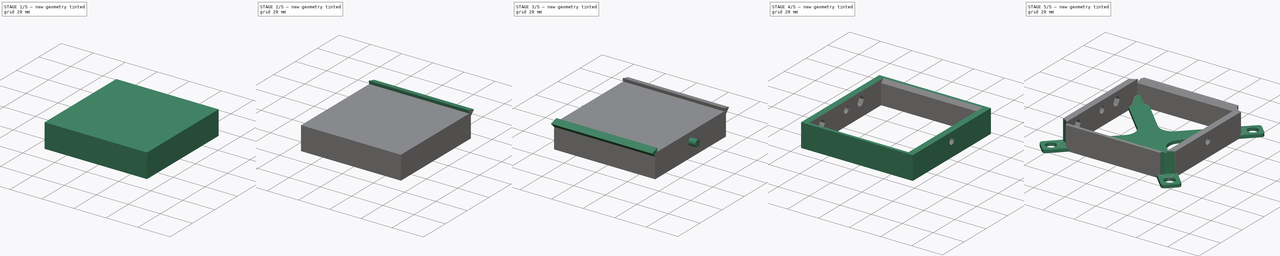
[diagram: build sequence overview — one tinted view per stage of 5, left to right]
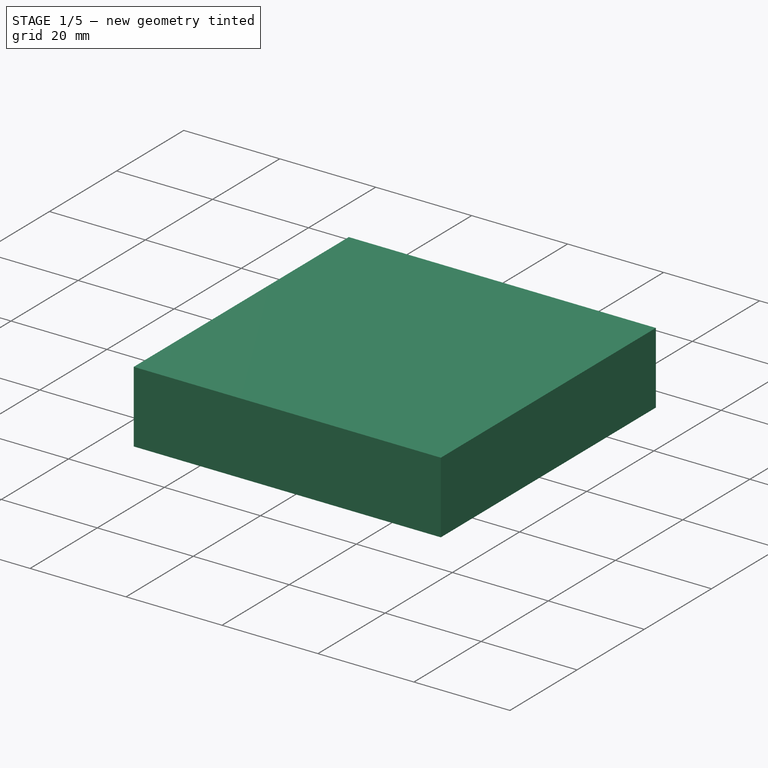
[diagram: stage 1 of 5 — iso view after this stage's code; geometry added in this stage tinted green]
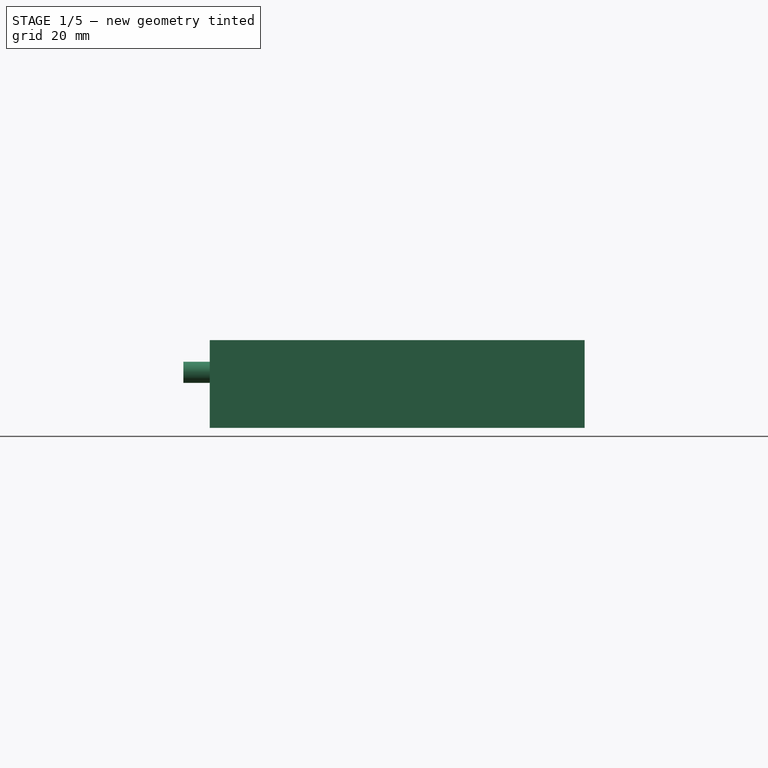
[diagram: stage 1 of 5 — front view after this stage's code; geometry added in this stage tinted green]
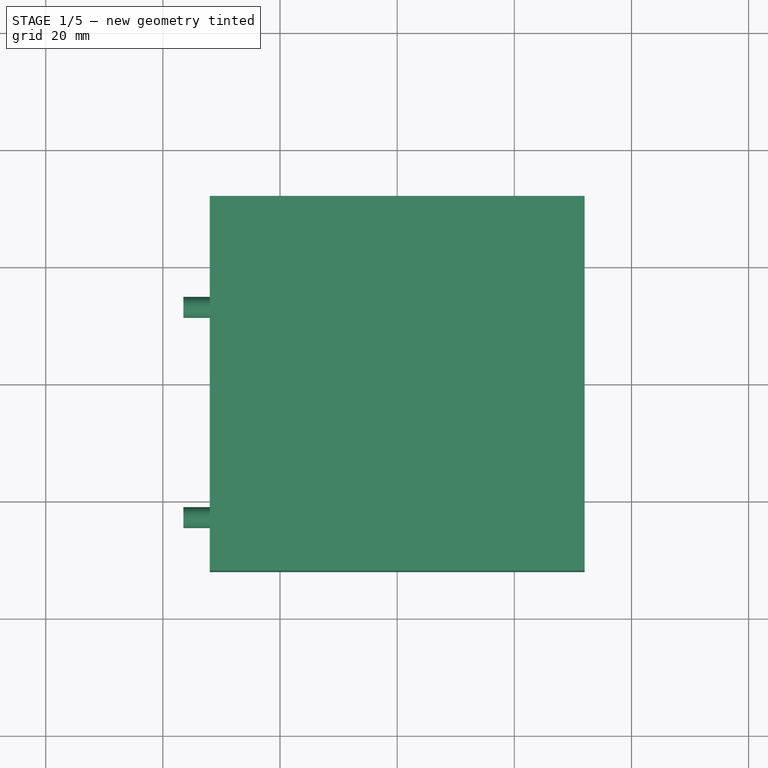
[diagram: stage 1 of 5 — top view after this stage's code; geometry added in this stage tinted green]
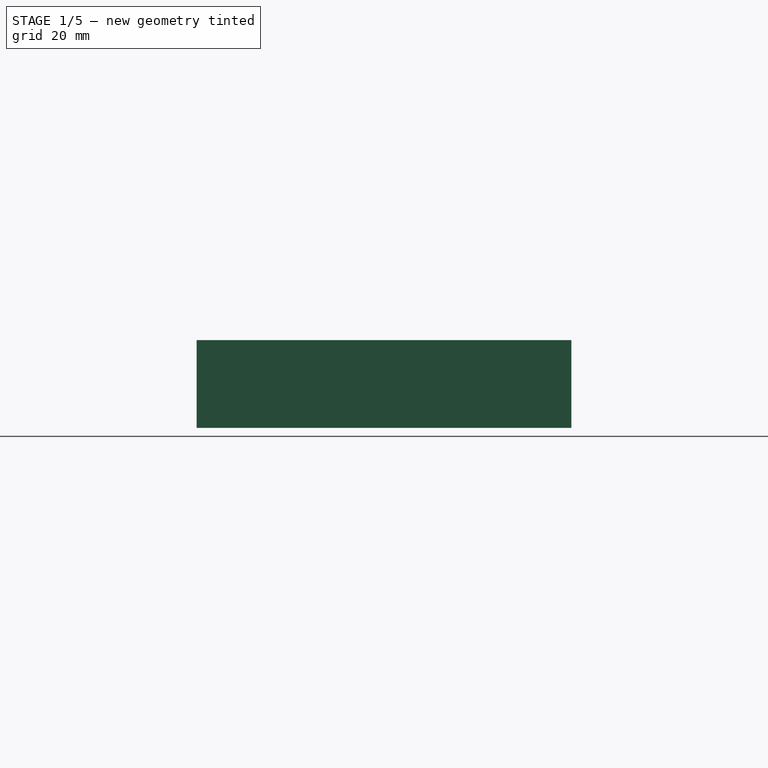
[diagram: stage 1 of 5 — right view after this stage's code; geometry added in this stage tinted green]
FCSTD DOCUMENT  (FreeCAD 0.19R23634 (Git))
Label: Stage-Base
License: All rights reserved
LicenseURL: http://en.wikipedia.org/wiki/All_rights_reserved
objects: Part::Prism×4, Part::Cylinder×3, Sketcher::SketchObject×3, Part::Box×2, PartDesign::CoordinateSystem×2, Part::MultiFuse×1, Part::Cut×1, PartDesign::FeatureBase×1, PartDesign::Pad×1, PartDesign::Pocket×1, PartDesign::Revolution×1, PartDesign::Body×1, App::Part×1
note: 24 computed .brp shape members not serialized (recipe doc carries the construction recipe); baked Part::Feature solids carry a one-line shape summary decoded from their .brp

FEATURE [Part::Cylinder] cylinder002
  Angle = 360
  AttacherType = Attacher::AttachEngine3D
  Height = 6
  Placement = pos=(-36.5,-22.85,-7.5) rot=(0.57735,0.57735,0.57735;2.0944rad)
  Radius = 1.8
FEATURE [Part::Box] cube001
  AttacherType = Attacher::AttachEngine3D
  Height = 15
  Length = 64
  Placement = pos=(-32,-32,-17) rot=(0,0,1;0rad)
  Width = 64
FEATURE [Part::Cylinder] cylinder001
  Angle = 360
  AttacherType = Attacher::AttachEngine3D
  Height = 6
  Placement = pos=(-36.5,13.05,-7.5) rot=(0.57735,0.57735,0.57735;2.0944rad)
  Radius = 1.8
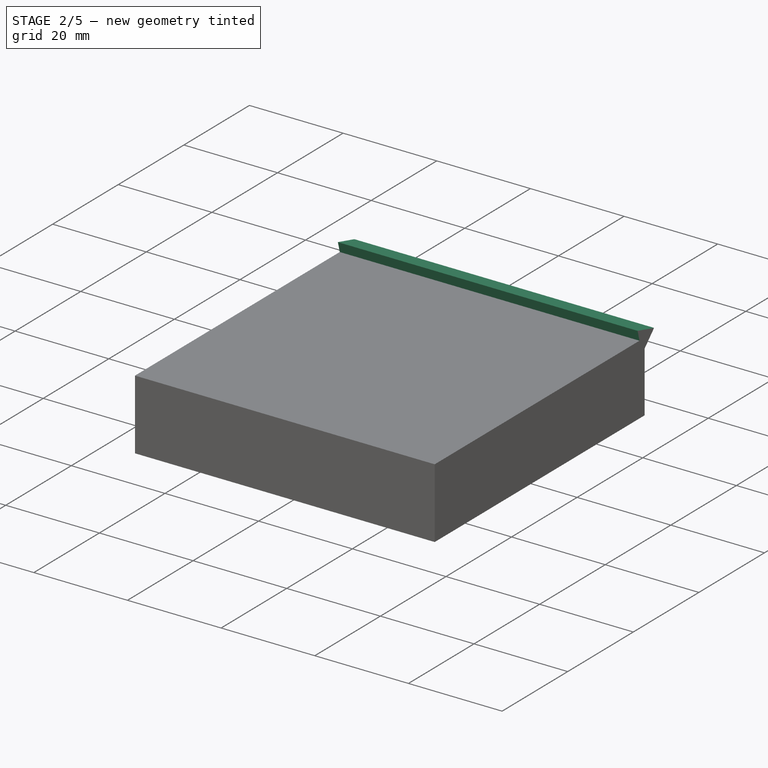
[diagram: stage 2 of 5 — iso view after this stage's code; geometry added in this stage tinted green]
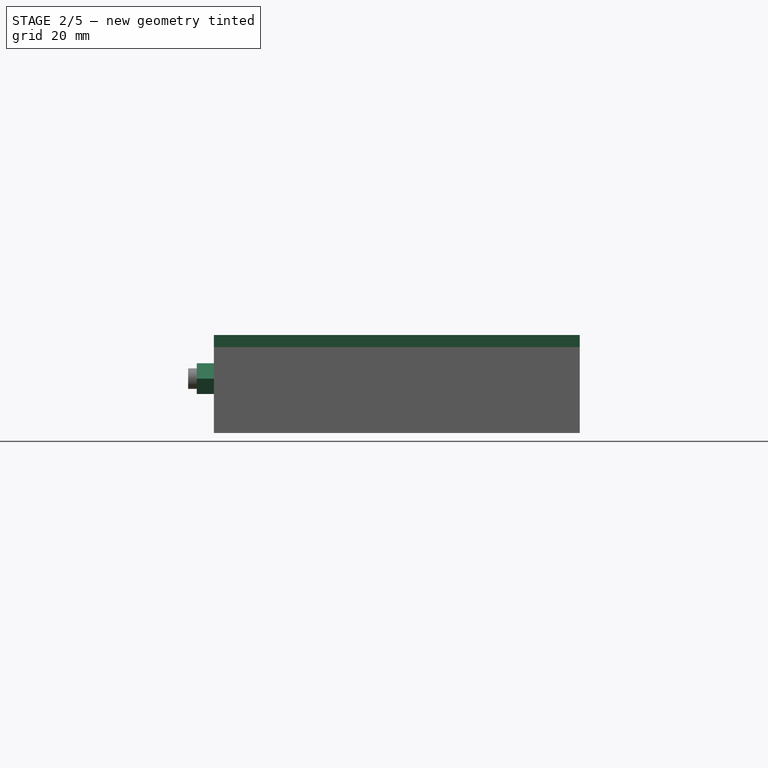
[diagram: stage 2 of 5 — front view after this stage's code; geometry added in this stage tinted green]
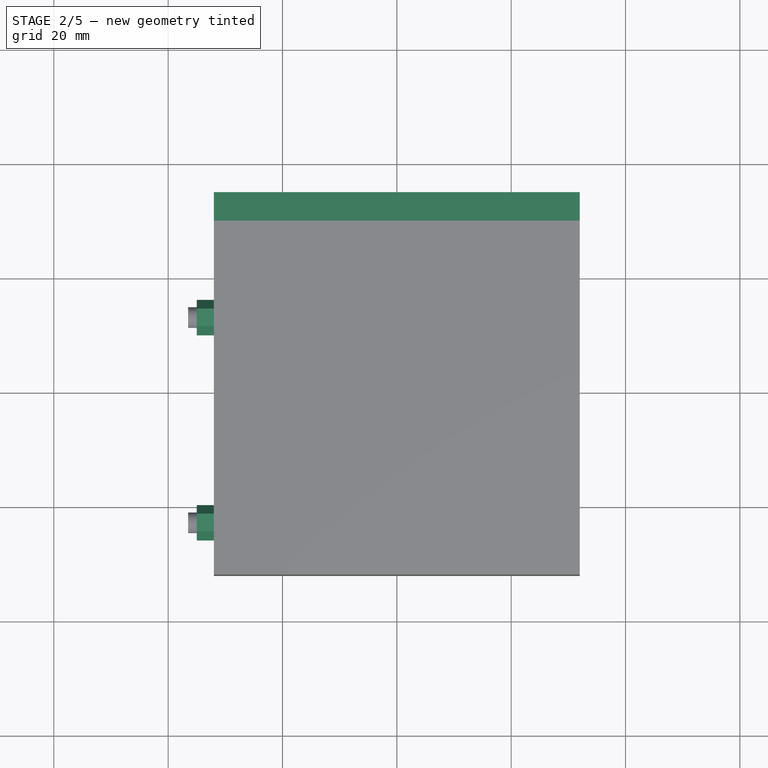
[diagram: stage 2 of 5 — top view after this stage's code; geometry added in this stage tinted green]
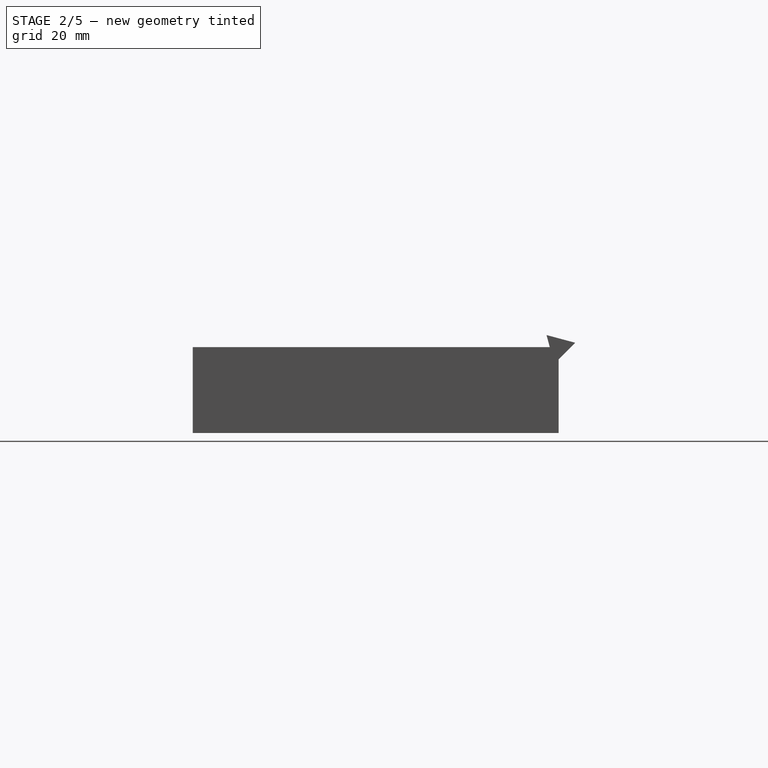
[diagram: stage 2 of 5 — right view after this stage's code; geometry added in this stage tinted green]
FEATURE [Part::Prism] prism002
  AttacherType = Attacher::AttachEngine3D
  Circumradius = 3.1
  FirstAngle = 0
  Height = 3
  Placement = pos=(-35,13.05,-7.5) rot=(0.57735,0.57735,0.57735;2.0944rad)
  Polygon = 6
  SecondAngle = 0
FEATURE [Part::Prism] prism
  AttacherType = Attacher::AttachEngine3D
  Circumradius = 3
  FirstAngle = 0
  Height = 64
  Placement = pos=(-32,32,-2) rot=(0.621515,0.476905,0.621515;2.25159rad)
  Polygon = 3
  SecondAngle = 0
FEATURE [Part::Prism] prism003
  AttacherType = Attacher::AttachEngine3D
  Circumradius = 3.1
  FirstAngle = 0
  Height = 3
  Placement = pos=(-35,-22.85,-7.5) rot=(0.57735,0.57735,0.57735;2.0944rad)
  Polygon = 6
  SecondAngle = 0
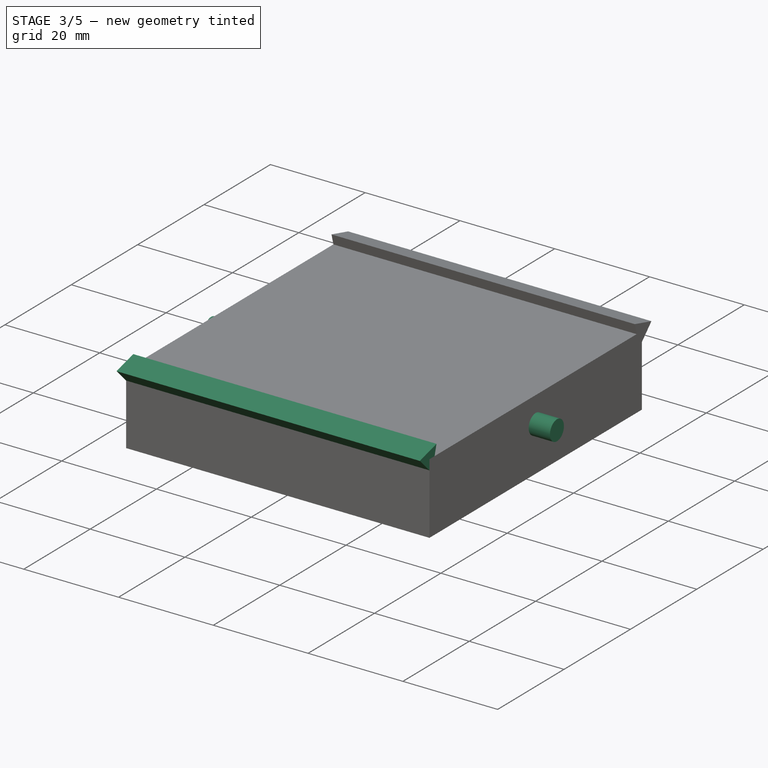
[diagram: stage 3 of 5 — iso view after this stage's code; geometry added in this stage tinted green]
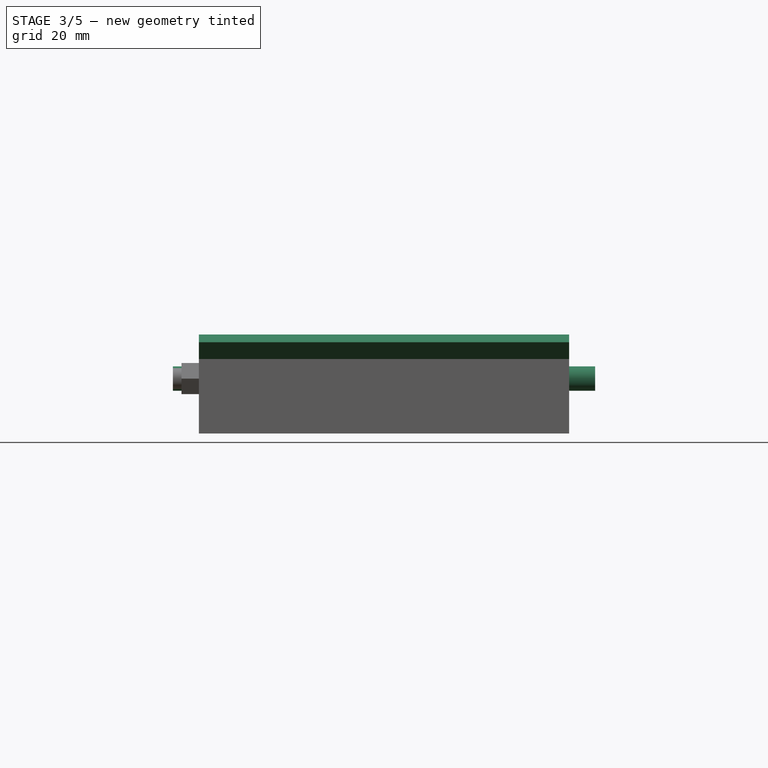
[diagram: stage 3 of 5 — front view after this stage's code; geometry added in this stage tinted green]
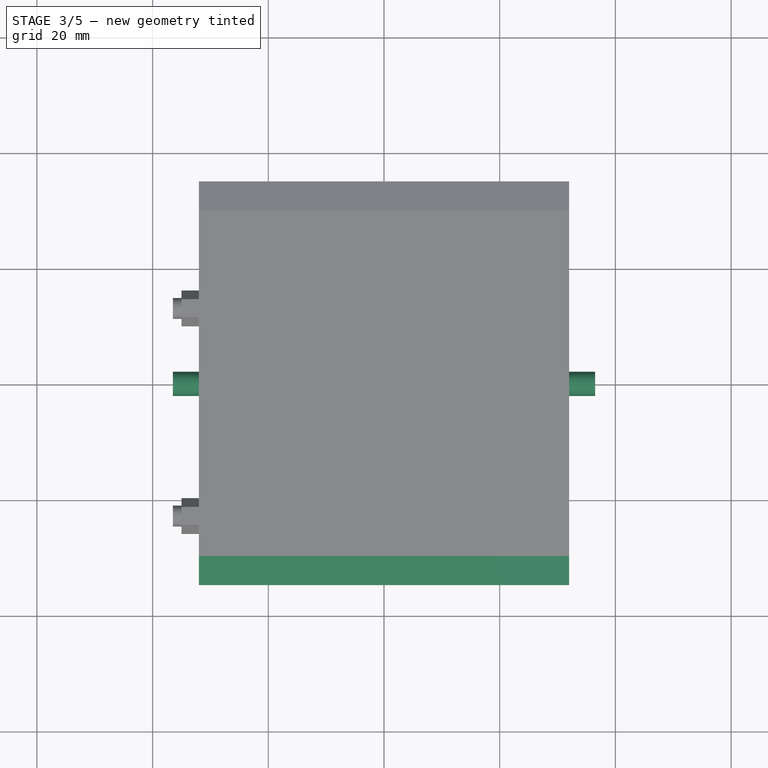
[diagram: stage 3 of 5 — top view after this stage's code; geometry added in this stage tinted green]
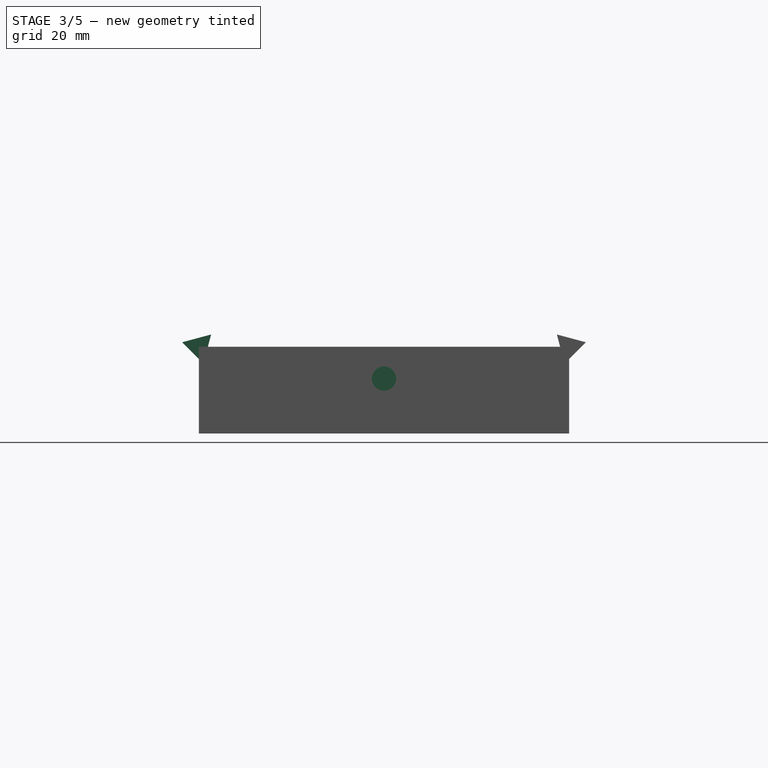
[diagram: stage 3 of 5 — right view after this stage's code; geometry added in this stage tinted green]
FEATURE [Part::Cylinder] cylinder
  Angle = 360
  AttacherType = Attacher::AttachEngine3D
  Height = 73
  Placement = pos=(-36.5,8e-15,-7.5) rot=(0.57735,0.57735,0.57735;2.0944rad)
  Radius = 2.1
FEATURE [Part::Prism] prism001
  AttacherType = Attacher::AttachEngine3D
  Circumradius = 3
  FirstAngle = 0
  Height = 64
  Placement = pos=(-32,-32,-2) rot=(0.621515,-0.476905,0.621515;4.0316rad)
  Polygon = 3
  SecondAngle = 0
FEATURE [Sketcher::SketchObject] Sketch001
  FullyConstrained = true
  MapMode = 5
  Placement = pos=(0,0,-17) rot=(1,0,0;3.14159rad)
  sketch-geometry (28):
    g0: Circle CenterX=-38.1 CenterY=38.1 CenterZ=0 NormalX=0 NormalY=0 NormalZ=1 AngleXU=0 Radius=3.175
    g1: Circle CenterX=38.1 CenterY=38.1 CenterZ=0 NormalX=0 NormalY=0 NormalZ=1 AngleXU=0 Radius=3.175
    g2: Circle CenterX=-38.1 CenterY=-38.1 CenterZ=0 NormalX=0 NormalY=0 NormalZ=1 AngleXU=0 Radius=3.175
    g3: Circle CenterX=38.1 CenterY=-38.1 CenterZ=0 NormalX=0 NormalY=0 NormalZ=1 AngleXU=0 Radius=3.175
    g4: LineSegment StartX=-44.464 StartY=36.6858 StartZ=0 EndX=-13.435 EndY=5.65685 EndZ=0
    g5: LineSegment StartX=-13.435 StartY=-5.65685 StartZ=0 EndX=-44.464 EndY=-36.6858 EndZ=0
    g6: LineSegment StartX=-44.464 StartY=-39.5142 StartZ=0 EndX=-39.5142 EndY=-44.464 EndZ=0
    g7: LineSegment StartX=-36.6858 StartY=-44.464 StartZ=0 EndX=-5.65685 EndY=-13.435 EndZ=0
    g8: LineSegment StartX=5.65685 StartY=-13.435 StartZ=0 EndX=36.6858 EndY=-44.464 EndZ=0
    g9: LineSegment StartX=39.5142 StartY=-44.464 StartZ=0 EndX=44.464 EndY=-39.5142 EndZ=0
    g10: LineSegment StartX=44.464 StartY=-36.6858 StartZ=0 EndX=13.435 EndY=-5.65685 EndZ=0
    g11: LineSegment StartX=13.435 StartY=5.65685 StartZ=0 EndX=44.464 EndY=36.6858 EndZ=0
    g12: LineSegment StartX=44.464 StartY=39.5142 StartZ=0 EndX=39.5142 EndY=44.464 EndZ=0
    g13: LineSegment StartX=36.6858 StartY=44.464 StartZ=0 EndX=5.65685 EndY=13.435 EndZ=0
    g14: LineSegment StartX=-5.65685 StartY=13.435 StartZ=0 EndX=-36.6858 EndY=44.464 EndZ=0
    g15: LineSegment StartX=-39.5142 StartY=44.464 StartZ=0 EndX=-44.464 EndY=39.5142 EndZ=0
    g16: ArcOfCircle CenterX=-43.0497 CenterY=38.1 CenterZ=0 NormalX=0 NormalY=0 NormalZ=1 AngleXU=0 Radius=2 StartAngle=2.35619 EndAngle=3.92699
    g17: ArcOfCircle CenterX=-38.1 CenterY=43.0497 CenterZ=0 NormalX=0 NormalY=0 NormalZ=1 AngleXU=0 Radius=2 StartAngle=0.785398 EndAngle=2.35619
    g18: ArcOfCircle CenterX=38.1 CenterY=43.0497 CenterZ=0 NormalX=0 NormalY=0 NormalZ=1 AngleXU=0 Radius=2 StartAngle=0.785398 EndAngle=2.35619
    g19: ArcOfCircle CenterX=43.0497 CenterY=38.1 CenterZ=0 NormalX=0 NormalY=0 NormalZ=1 AngleXU=0 Radius=2 StartAngle=5.49779 EndAngle=7.06858
    g20: ArcOfCircle CenterX=43.0497 CenterY=-38.1 CenterZ=0 NormalX=0 NormalY=0 NormalZ=1 AngleXU=0 Radius=2 StartAngle=5.49779 EndAngle=7.06858
    g21: ArcOfCircle CenterX=38.1 CenterY=-43.0497 CenterZ=0 NormalX=0 NormalY=0 NormalZ=1 AngleXU=0 Radius=2 StartAngle=3.92699 EndAngle=5.49779
    g22: ArcOfCircle CenterX=-38.1 CenterY=-43.0497 CenterZ=0 NormalX=0 NormalY=0 NormalZ=1 AngleXU=0 Radius=2 StartAngle=3.92699 EndAngle=5.49779
    g23: ArcOfCircle CenterX=-43.0497 CenterY=-38.1 CenterZ=0 NormalX=0 NormalY=0 NormalZ=1 AngleXU=0 Radius=2 StartAngle=2.35619 EndAngle=3.92699
    g24: ArcOfCircle CenterX=-3e-15 CenterY=-19.0919 CenterZ=0 NormalX=0 NormalY=0 NormalZ=1 AngleXU=0 Radius=8 StartAngle=0.785398 EndAngle=2.35619
    g25: ArcOfCircle CenterX=19.0919 CenterY=1.4e-15 CenterZ=0 NormalX=0 NormalY=0 NormalZ=1 AngleXU=0 Radius=8 StartAngle=2.35619 EndAngle=3.92699
    g26: ArcOfCircle CenterX=-19.0919 CenterY=3.2e-15 CenterZ=0 NormalX=0 NormalY=0 NormalZ=1 AngleXU=0 Radius=8 StartAngle=5.49779 EndAngle=7.06858
    g27: ArcOfCircle CenterX=2.8e-15 CenterY=19.0919 CenterZ=0 NormalX=0 NormalY=0 NormalZ=1 AngleXU=0 Radius=8 StartAngle=3.92699 EndAngle=5.49779
  constraints (63):
    c: Diameter(g0) = 6.35
    c: Equal(g1,g3)
    c: Equal(g3,g2)
    c: DistanceX(g0,g1) = 76.2
    c: DistanceY(g2,g0) = 76.2
    c: Horizontal(g2,g3)
    c: Vertical(g3,g1)
    c: Symmetric(g0,g1,g-2)
    c: Symmetric(g0,g2,g-1)
    c: Equal(g0,g1)
    c: Parallel(g15,g9)
    c: Parallel(g9,g11)
    c: Parallel(g11,g13)
    c: Parallel(g13,g5)
    c: Parallel(g5,g7)
    c: Angle(g15) = -2.35619
    c: Parallel(g6,g4)
    c: Parallel(g4,g8)
    c: Parallel(g8,g10)
    c: Parallel(g10,g14)
    c: Parallel(g14,g12)
    c: Angle(g12) = 2.35619
    c: Tangent(g4,g16) = -1.5708
    c: Tangent(g15,g16) = -1.5708
    c: Tangent(g15,g17) = -1.5708
    c: Tangent(g14,g17) = -1.5708
    c: Tangent(g13,g18) = -1.5708
    c: Tangent(g12,g18) = -1.5708
    c: Tangent(g12,g19) = -1.5708
    c: Tangent(g11,g19) = -1.5708
    c: Tangent(g10,g20) = -1.5708
    c: Tangent(g9,g20) = -1.5708
    c: Tangent(g9,g21) = -1.5708
    c: Tangent(g8,g21) = -1.5708
    c: Tangent(g7,g22) = -1.5708
    c: Tangent(g6,g22) = -1.5708
    c: Tangent(g6,g23) = -1.5708
    c: Tangent(g5,g23) = -1.5708
    c: Tangent(g7,g24) = 1.5708
    c: Tangent(g8,g24) = 1.5708
    c: Tangent(g10,g25) = 1.5708
    c: Tangent(g11,g25) = 1.5708
    c: Tangent(g4,g26) = 1.5708
    c: Tangent(g5,g26) = 1.5708
    c: Tangent(g14,g27) = 1.5708
    c: Tangent(g13,g27) = 1.5708
    c: Diameter(g16) = 4
    c: Equal(g16, g17-g20) x4
    c: Equal(g16,g22)
    c: Equal(g16,g23)
    c: Diameter(g24) = 16
    c: Equal(g24,g26)
    c: Equal(g24,g27)
    c: Equal(g24,g25)
    c: Symmetric(g7,g8,g-2)
    c: Symmetric(g5,g4,g-1)
    c: Symmetric(g14,g13,g-2)
    c: Symmetric(g10,g11,g-1)
    c: Distance(g1,g12) = 5.5
    c: Distance(g1,g13) = 5.5
    c: Distance(g1,g11) = 5.5
    c: Distance(g2,g5) = 5.5
    c: Distance(g2,g7) = 5.5
FEATURE [Part::MultiFuse] Group
  Shapes = -> [cube001,cylinder,prism,prism001,prism002,prism003,cylinder001,cylinder002]
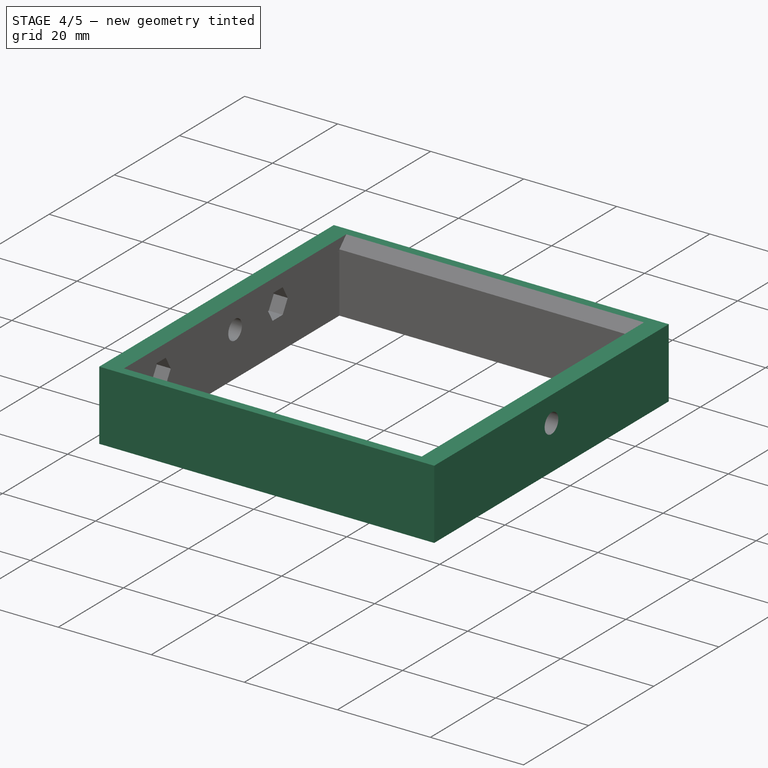
[diagram: stage 4 of 5 — iso view after this stage's code; geometry added in this stage tinted green]
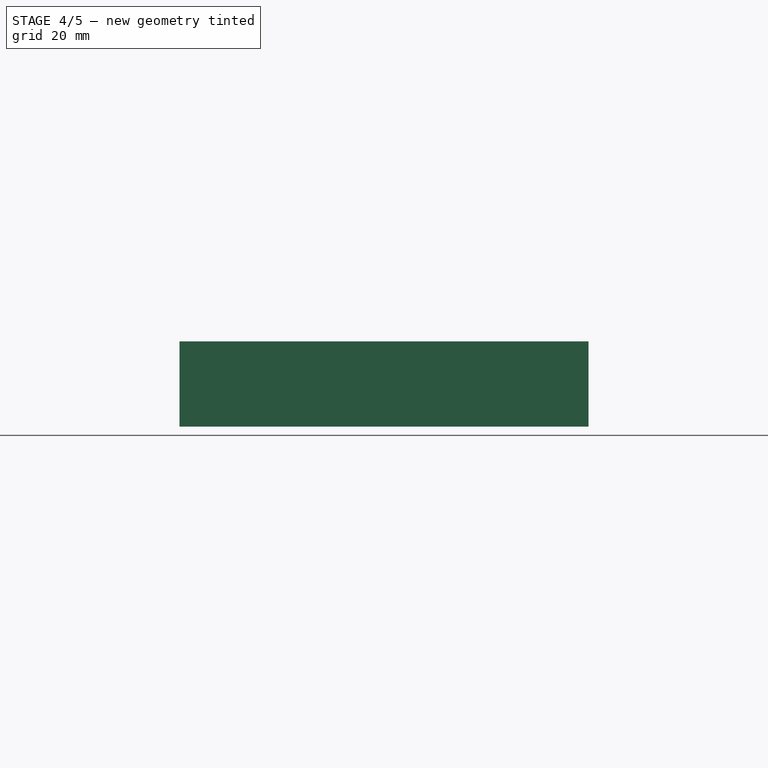
[diagram: stage 4 of 5 — front view after this stage's code; geometry added in this stage tinted green]
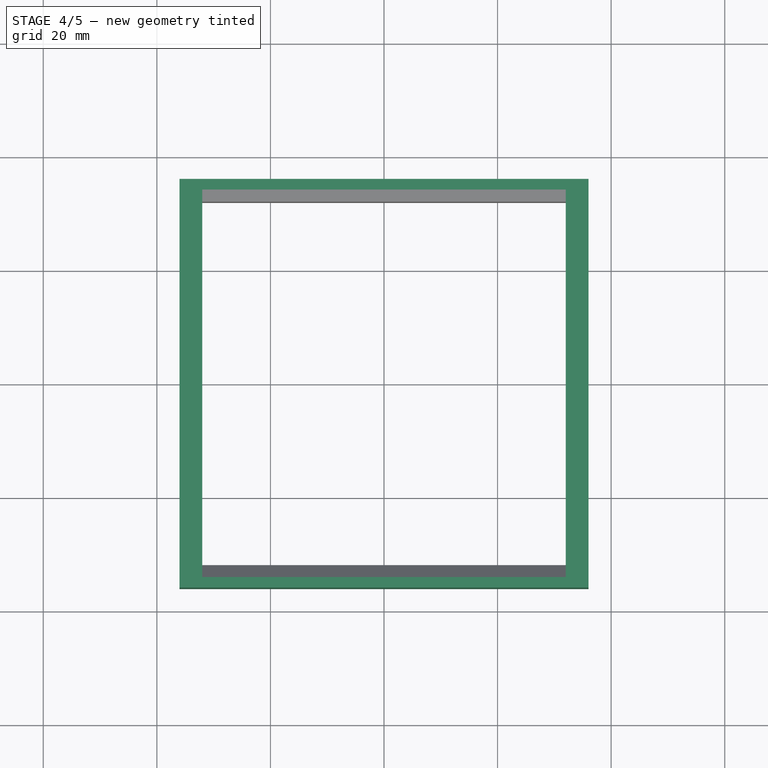
[diagram: stage 4 of 5 — top view after this stage's code; geometry added in this stage tinted green]
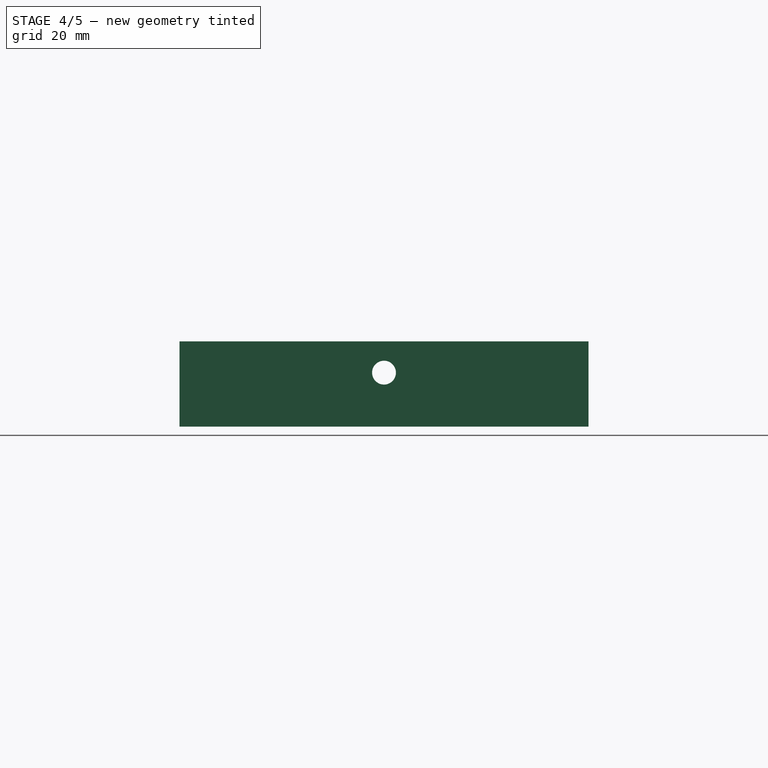
[diagram: stage 4 of 5 — right view after this stage's code; geometry added in this stage tinted green]
FEATURE [Part::Box] cube
  AttacherType = Attacher::AttachEngine3D
  Height = 15
  Length = 72
  Placement = pos=(-36,-36,-17) rot=(0,0,1;0rad)
  Width = 72
FEATURE [Part::Cut] difference
  Base = -> cube
  Tool = -> Group
FEATURE [PartDesign::FeatureBase] BaseFeature
  BaseFeature = -> difference
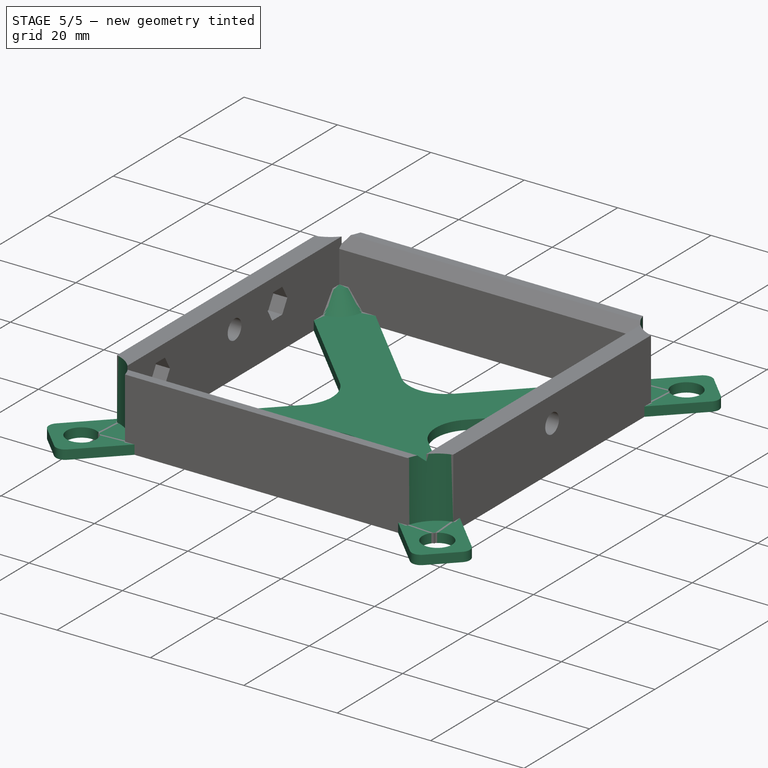
[diagram: stage 5 of 5 — iso view after this stage's code; geometry added in this stage tinted green]
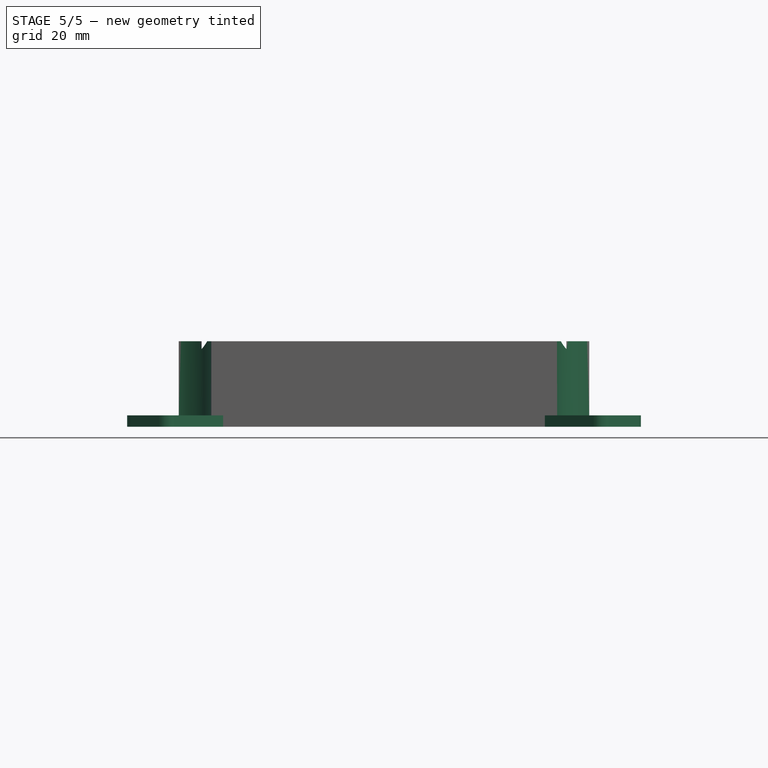
[diagram: stage 5 of 5 — front view after this stage's code; geometry added in this stage tinted green]
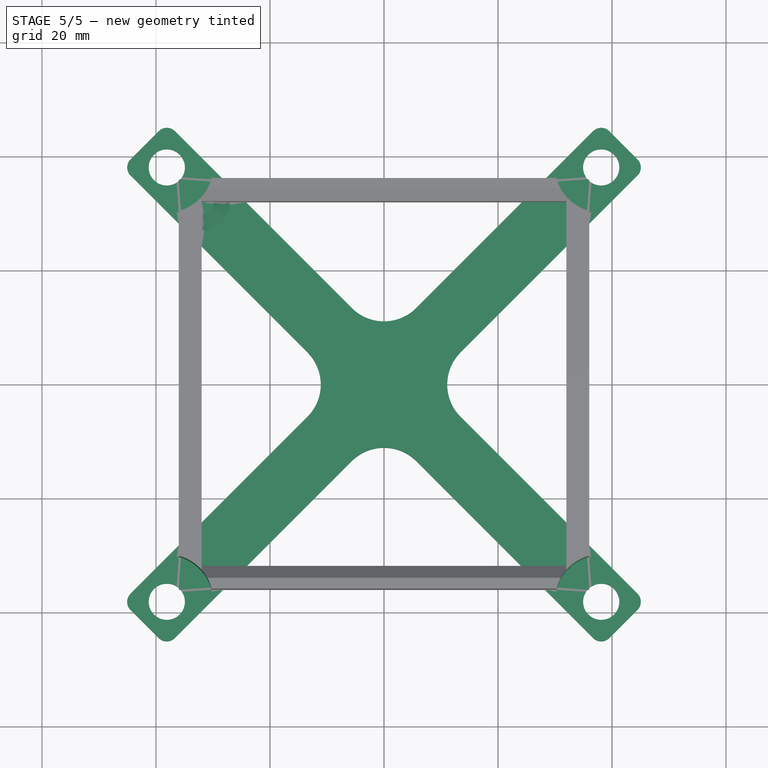
[diagram: stage 5 of 5 — top view after this stage's code; geometry added in this stage tinted green]
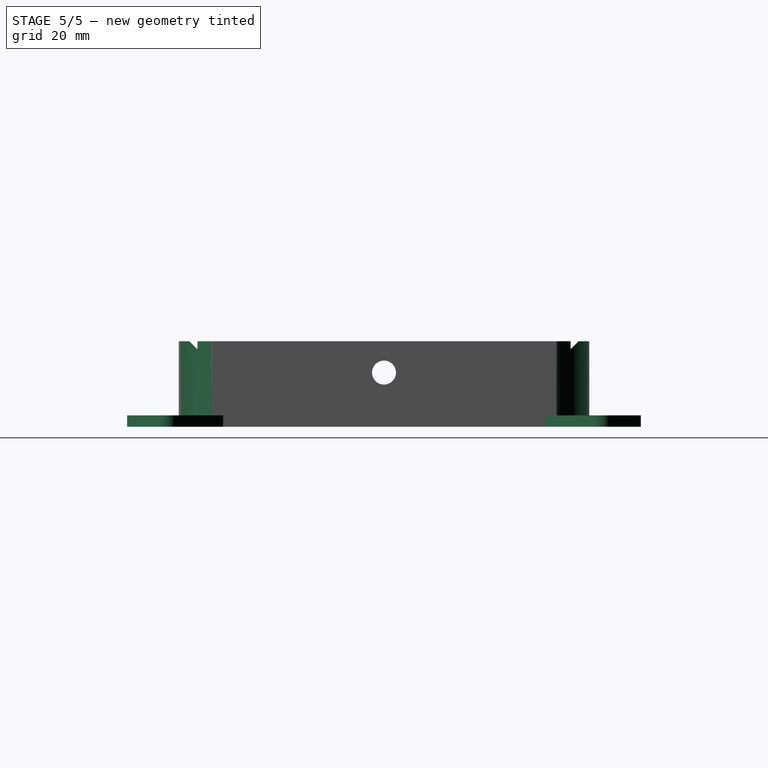
[diagram: stage 5 of 5 — right view after this stage's code; geometry added in this stage tinted green]
FEATURE [PartDesign::Pad] Pad
  BaseFeature = -> BaseFeature
  Direction = (1,1,1)
  Length = 2
  Length2 = 100
  Profile = -> Sketch001
  Reversed = true
  Type = 0
FEATURE [Sketcher::SketchObject] Sketch
  FullyConstrained = true
  MapMode = 5
  Placement = pos=(0,0,-2) rot=(0,0,1;0rad)
  Support = -> [Pad]
  sketch-geometry (4):
    g0: Circle CenterX=-38.1 CenterY=-38.1 CenterZ=0 NormalX=0 NormalY=0 NormalZ=1 AngleXU=0 Radius=8.125
    g1: Circle CenterX=38.1 CenterY=-38.1 CenterZ=0 NormalX=0 NormalY=0 NormalZ=1 AngleXU=0 Radius=8.125
    g2: Circle CenterX=38.1 CenterY=38.1 CenterZ=0 NormalX=0 NormalY=0 NormalZ=1 AngleXU=0 Radius=8.125
    g3: Circle CenterX=-38.1 CenterY=38.1 CenterZ=0 NormalX=0 NormalY=0 NormalZ=1 AngleXU=0 Radius=8.125
  constraints (10):
    c: DistanceX(g3,g2) = 76.2
    c: Symmetric(g3,g2,g-2)
    c: DistanceY(g0,g3) = 76.2
    c: Horizontal(g0,g1)
    c: Symmetric(g3,g0,g-1)
    c: Vertical(g1,g2)
    c: Diameter(g0) = 16.25
    c: Equal(g0,g1)
    c: Equal(g1,g2)
    c: Equal(g2,g3)
FEATURE [PartDesign::Pocket] Pocket
  BaseFeature = -> Pad
  Length = 13
  Length2 = 100
  Profile = -> Sketch
  Type = 0
FEATURE [Sketcher::SketchObject] Sketch002
  ExternalGeometry = -> [Pocket]
  FullyConstrained = true
  MapMode = 5
  Placement = pos=(0,32,0) rot=(1,0,0;1.5708rad)
  Support = -> [Pocket]
  sketch-geometry (4):
    g0: LineSegment StartX=-32 StartY=-15 StartZ=0 EndX=-32 EndY=-11 EndZ=0
    g1: LineSegment StartX=-27 StartY=-15 StartZ=0 EndX=-32 EndY=-15 EndZ=0
    g2: LineSegment StartX=-32 StartY=-11 StartZ=0 EndX=-30 EndY=-11 EndZ=0
    g3: LineSegment StartX=-30 StartY=-11 StartZ=0 EndX=-27 EndY=-15 EndZ=0
  constraints (12):
    c: PointOnObject(g0,g-4)
    c: PointOnObject(g0,g-4)
    c: PointOnObject(g1,g-3)
    c: Coincident(g1,g0)
    c: Horizontal(g1)
    c: Distance(g0) = 4
    c: Distance(g1) = 5
    c: Coincident(g2,g0)
    c: Coincident(g3,g2)
    c: Coincident(g3,g1)
    c: Distance(g2) = 2
    c: Horizontal(g2)
FEATURE [PartDesign::Revolution] Revolution
  Angle = 90
  Axis = (0,0,1)
  Base = (-32,32,-17)
  BaseFeature = -> Pocket
  Profile = -> Sketch002
  ReferenceAxis = -> Pocket [Edge105]
  Reversed = true
FEATURE [PartDesign::CoordinateSystem] Slider_Base
  AttacherType = Attacher::AttachEngine3D
  MapMode = 45
  Placement = pos=(-1.98432e-06,32,-4.12132) rot=(0.57735,0.57735,0.57735;2.0944rad)
  Support = -> [Revolution]
FEATURE [PartDesign::Body] Body  label="Base Square"
  BaseFeature = -> difference
  Group = -> [BaseFeature,Sketch001,Pad,Sketch,Pocket,Sketch002,Revolution]
  Origin = -> Origin001
  Tip = -> Revolution
FEATURE [PartDesign::CoordinateSystem] LCS_001  label="Bottom"
  AttacherType = Attacher::AttachEngine3D
  MapMode = 45
  Placement = pos=(8.7e-15,3.3e-15,-17) rot=(0,0,1;0rad)
  Support = -> [Revolution]
FEATURE [App::Part] Baseplate
  Group = -> [LCS_001,cube,prism003,cylinder001,prism,prism002,cylinder002,Group,prism001,cylinder,cube001,difference,Body,Slider_Base]
  Origin = -> Origin008
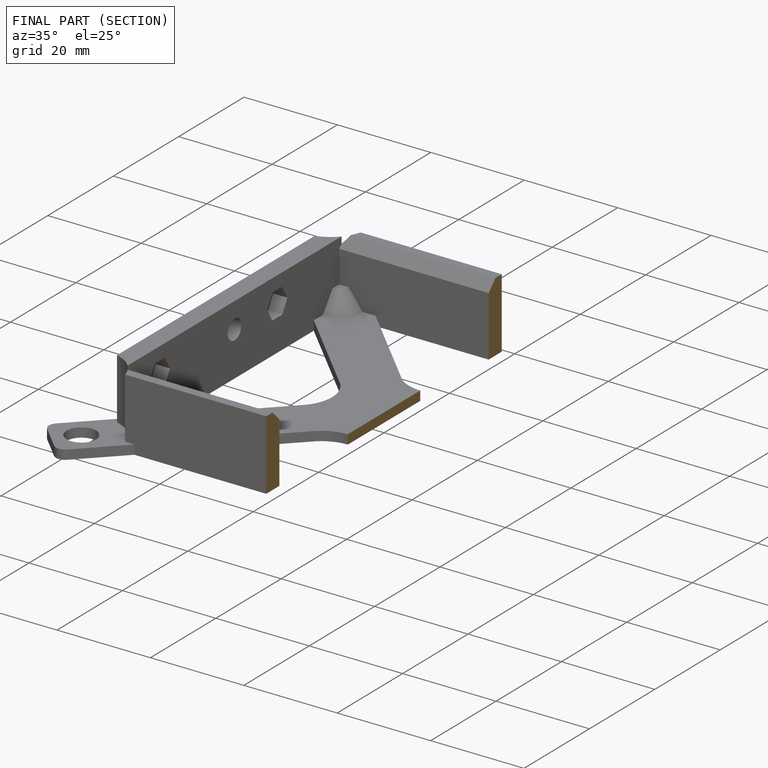
[diagram: finished part — half-section view (interior)]
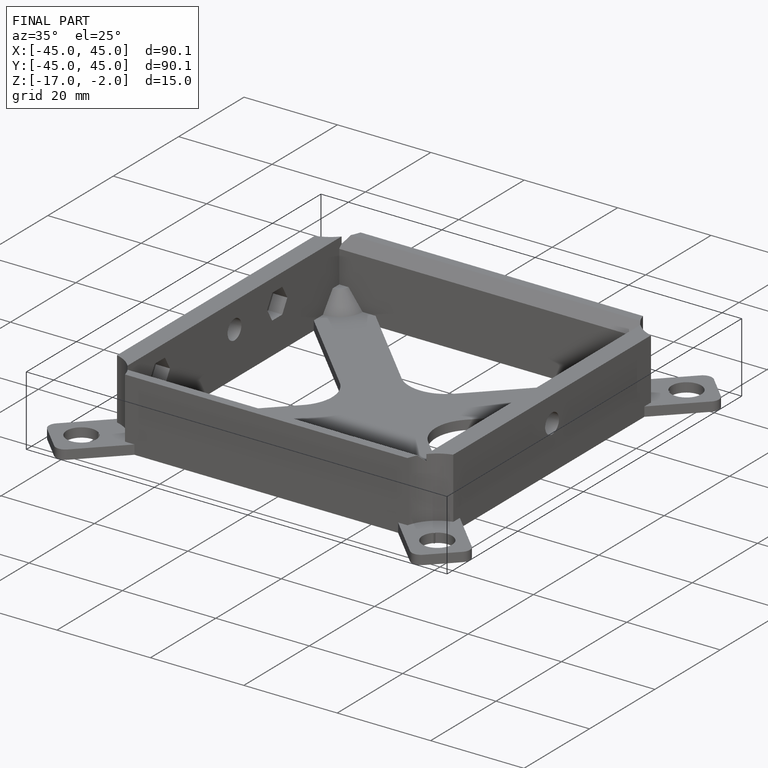
[diagram: finished part — iso view with bounding-box wireframe]
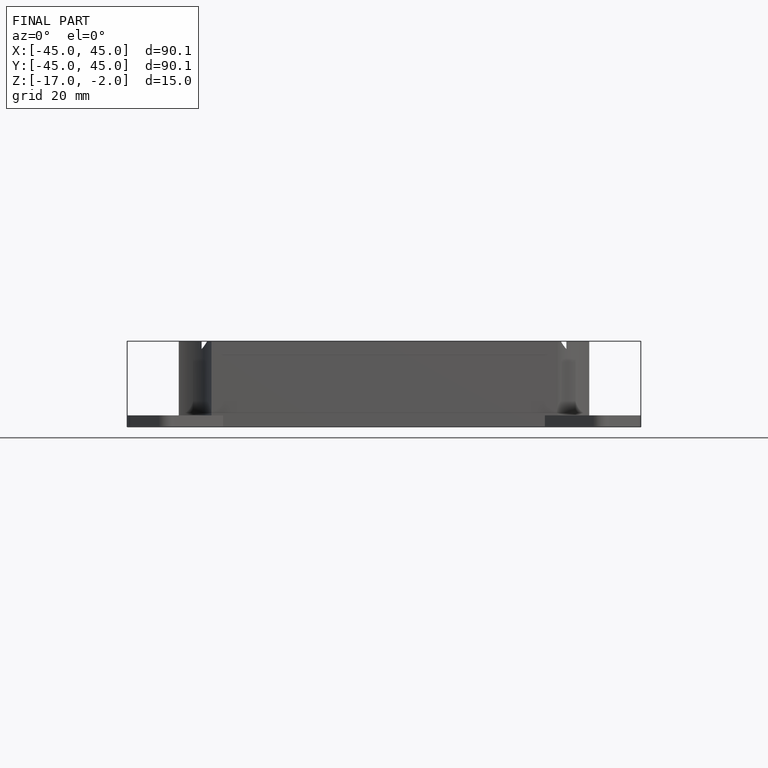
[diagram: finished part — front view with bounding-box wireframe]
